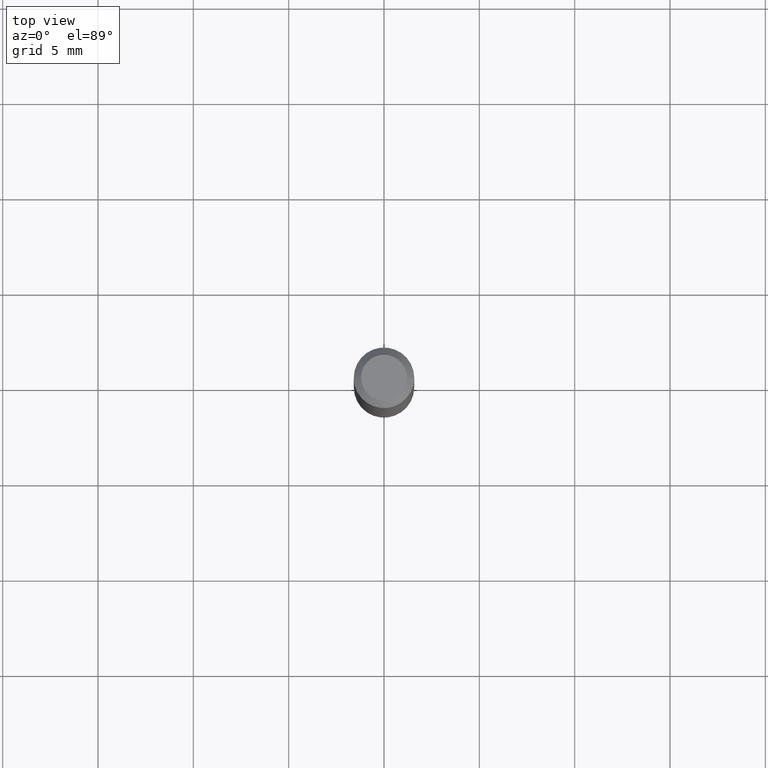
[diagram: clean part render]
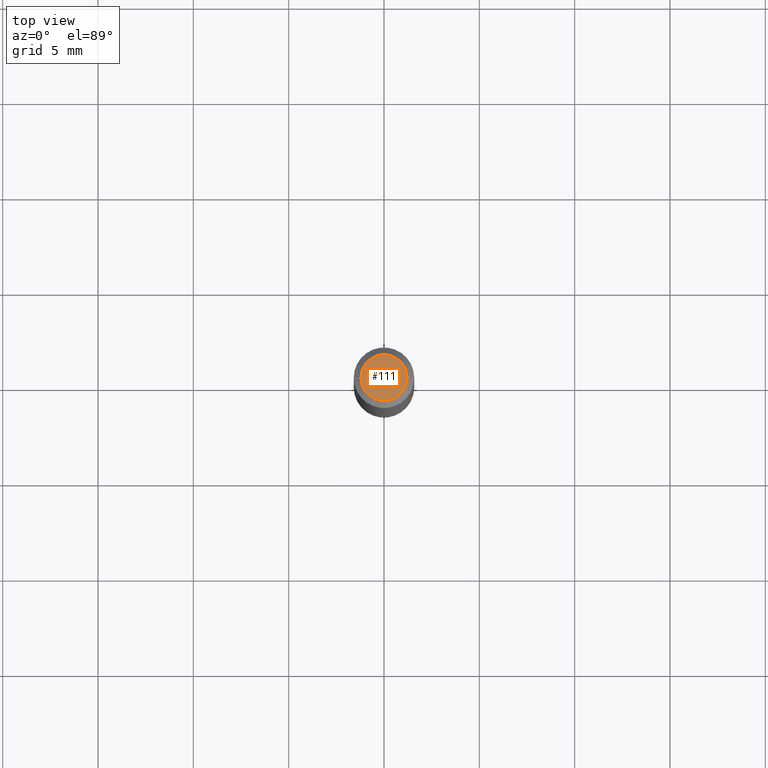
[diagram: same view with one face highlighted and labeled with its STEP entity id]
A machine part, top view. The second image highlights one B-rep face of the part: STEP entity #111.
In plain terms, the highlighted planar face has unit normal (0, -0, -1).
Its self-contained STEP definition (entity closure, byte-faithful):
#18 = ORIENTED_EDGE ( 'NONE', *, *, #36, .T. ) ;
#33 = DIRECTION ( 'NONE',  ( 1.000000000000000000, -6.982962677686266711E-15, 4.852736867747365086E-29 ) ) ;
#36 = EDGE_CURVE ( 'NONE', #117, #113, #72, .T. ) ;
#72 = CIRCLE ( 'NONE', #186, 0.04750000000000000749 ) ;
#89 = CIRCLE ( 'NONE', #368, 0.04750000000000000749 ) ;
#91 = CARTESIAN_POINT ( 'NONE',  ( -6.680649051745406845E-45, 9.538196290434862081E-31, 2.731847993664263218E-16 ) ) ;
#111 = ADVANCED_FACE ( 'NONE', ( #230 ), #465, .F. ) ;
#113 = VERTEX_POINT ( 'NONE', #513 ) ;
#117 = VERTEX_POINT ( 'NONE', #286 ) ;
#185 = CARTESIAN_POINT ( 'NONE',  ( 3.316907271900976589E-16, 0.04750000000000000749, -2.925296391183627249E-17 ) ) ;
#186 = AXIS2_PLACEMENT_3D ( 'NONE', #313, #273, #508 ) ;
#198 = DIRECTION ( 'NONE',  ( -1.000000000000000000, 6.982962677686265922E-15, -4.876176775795935793E-29 ) ) ;
#230 = FACE_OUTER_BOUND ( 'NONE', #364, .T. ) ;
#231 = AXIS2_PLACEMENT_3D ( 'NONE', #185, #474, #198 ) ;
#249 = DIRECTION ( 'NONE',  ( -2.445468806185136597E-29, 3.491481338843145583E-15, 1.000000000000000000 ) ) ;
#273 = DIRECTION ( 'NONE',  ( -2.445468806185136597E-29, 3.491481338843145583E-15, 1.000000000000000000 ) ) ;
#286 = CARTESIAN_POINT ( 'NONE',  ( 0.04750000000000000749, -4.035134999187568762E-16, 2.731847993664288856E-16 ) ) ;
#313 = CARTESIAN_POINT ( 'NONE',  ( -6.680649051745406845E-45, 9.538196290434862081E-31, 2.731847993664263218E-16 ) ) ;
#364 = EDGE_LOOP ( 'NONE', ( #377, #18 ) ) ;
#368 = AXIS2_PLACEMENT_3D ( 'NONE', #91, #249, #33 ) ;
#377 = ORIENTED_EDGE ( 'NONE', *, *, #503, .T. ) ;
#465 = PLANE ( 'NONE',  #231 ) ;
#474 = DIRECTION ( 'NONE',  ( 2.438088387897960049E-29, -3.491481338843145188E-15, -1.000000000000000000 ) ) ;
#503 = EDGE_CURVE ( 'NONE', #113, #117, #89, .T. ) ;
#508 = DIRECTION ( 'NONE',  ( 1.000000000000000000, -6.982962677686266711E-15, 4.852736867747365086E-29 ) ) ;
#513 = CARTESIAN_POINT ( 'NONE',  ( -0.04750000000000000749, 3.578768372314221353E-16, 2.731847993664239060E-16 ) ) ;